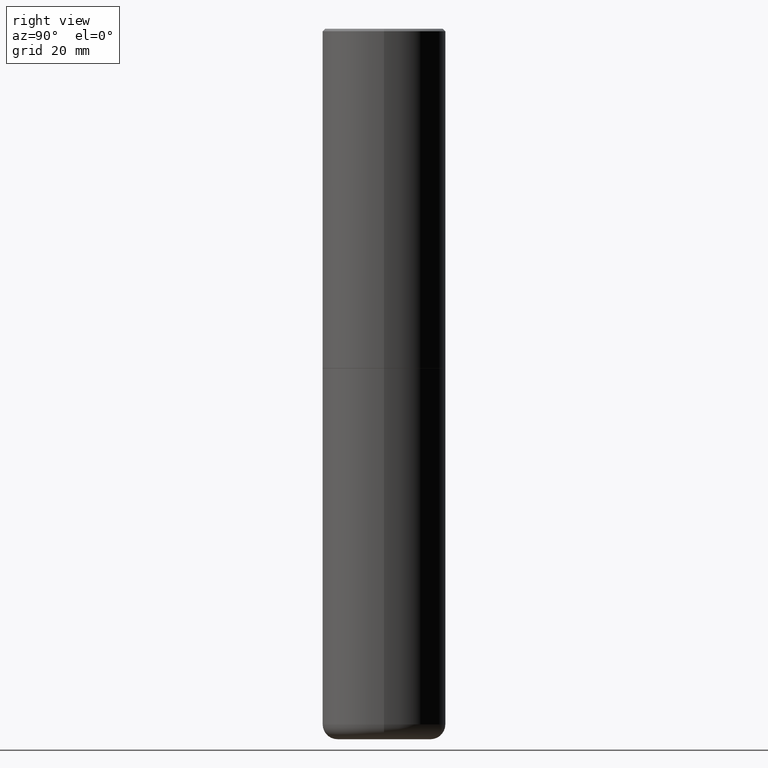
[diagram: clean part render]
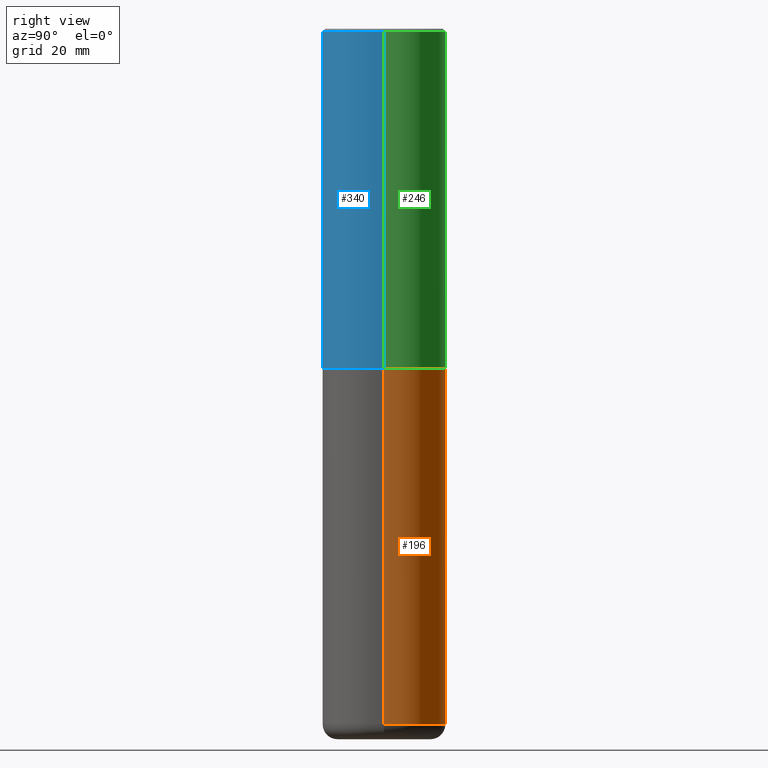
[diagram: same view with three faces highlighted in distinct colors, each labeled with its STEP entity id]
A machine part, right view with three faces highlighted in distinct colors.
Their STEP definitions:

[orange] entity #196 — the highlighted cylindrical surface (partial cylindrical patch) has radius 12.7 mm, axis along (-0, 0, 1).
#11 = VECTOR ( 'NONE', #122, 39.37007874015748143 ) ;
#14 = EDGE_CURVE ( 'NONE', #17, #47, #350, .T. ) ;
#17 = VERTEX_POINT ( 'NONE', #282 ) ;
#26 = VERTEX_POINT ( 'NONE', #417 ) ;
#31 = DIRECTION ( 'NONE',  ( 1.000000000000000000, -6.982962677686263555E-15, 0.000000000000000000 ) ) ;
#37 = CIRCLE ( 'NONE', #150, 0.4999999999999999445 ) ;
#47 = VERTEX_POINT ( 'NONE', #418 ) ;
#63 = ORIENTED_EDGE ( 'NONE', *, *, #141, .T. ) ;
#65 = VECTOR ( 'NONE', #148, 39.37007874015748143 ) ;
#80 = DIRECTION ( 'NONE',  ( -2.445468806185136597E-29, 3.491481338843145583E-15, 1.000000000000000000 ) ) ;
#99 = CIRCLE ( 'NONE', #294, 0.5000000000000000000 ) ;
#122 = DIRECTION ( 'NONE',  ( -2.445468806185136877E-29, 3.491481338843145188E-15, 1.000000000000000000 ) ) ;
#123 = CARTESIAN_POINT ( 'NONE',  ( -0.5000000000000000000, 3.552713678800500929E-15, -2.459467545127452891E-29 ) ) ;
#141 = EDGE_CURVE ( 'NONE', #17, #393, #37, .T. ) ;
#148 = DIRECTION ( 'NONE',  ( -2.445468806185136877E-29, 3.491481338843145188E-15, 1.000000000000000000 ) ) ;
#150 = AXIS2_PLACEMENT_3D ( 'NONE', #319, #156, #31 ) ;
#156 = DIRECTION ( 'NONE',  ( -2.445468806185136597E-29, 3.491481338843145583E-15, 1.000000000000000000 ) ) ;
#161 = LINE ( 'NONE', #123, #11 ) ;
#169 = DIRECTION ( 'NONE',  ( 1.000000000000000000, -6.982962677686266711E-15, 4.876176775795935793E-29 ) ) ;
#196 = ADVANCED_FACE ( 'NONE', ( #291 ), #271, .T. ) ;
#201 = DIRECTION ( 'NONE',  ( -2.445468806185136597E-29, 3.491481338843145583E-15, 1.000000000000000000 ) ) ;
#216 = EDGE_CURVE ( 'NONE', #393, #26, #161, .T. ) ;
#233 = CARTESIAN_POINT ( 'NONE',  ( -0.4999999999999998335, -1.610432625888640549E-14, -5.629999999999999893 ) ) ;
#247 = ORIENTED_EDGE ( 'NONE', *, *, #216, .T. ) ;
#260 = CARTESIAN_POINT ( 'NONE',  ( 0.000000000000000000, 0.000000000000000000, 0.000000000000000000 ) ) ;
#271 = CYLINDRICAL_SURFACE ( 'NONE', #275, 0.5000000000000000000 ) ;
#275 = AXIS2_PLACEMENT_3D ( 'NONE', #260, #201, #169 ) ;
#282 = CARTESIAN_POINT ( 'NONE',  ( 0.4999999999999998335, -2.314852127653003978E-14, -5.629999999999999893 ) ) ;
#291 = FACE_OUTER_BOUND ( 'NONE', #387, .T. ) ;
#294 = AXIS2_PLACEMENT_3D ( 'NONE', #376, #80, #339 ) ;
#319 = CARTESIAN_POINT ( 'NONE',  ( 1.376798937882231913E-28, -1.965703993768690642E-14, -5.629999999999999893 ) ) ;
#321 = CARTESIAN_POINT ( 'NONE',  ( 0.5000000000000000000, -3.491481338843133355E-15, 2.438088387897967896E-29 ) ) ;
#339 = DIRECTION ( 'NONE',  ( 1.000000000000000000, -6.982962677686266711E-15, 0.000000000000000000 ) ) ;
#346 = ORIENTED_EDGE ( 'NONE', *, *, #14, .F. ) ;
#350 = LINE ( 'NONE', #321, #65 ) ;
#357 = EDGE_CURVE ( 'NONE', #47, #26, #99, .T. ) ;
#376 = CARTESIAN_POINT ( 'NONE',  ( 6.725039217009123399E-29, -9.601573681818648281E-15, -2.749999999999999556 ) ) ;
#387 = EDGE_LOOP ( 'NONE', ( #63, #247, #395, #346 ) ) ;
#393 = VERTEX_POINT ( 'NONE', #233 ) ;
#395 = ORIENTED_EDGE ( 'NONE', *, *, #357, .F. ) ;
#417 = CARTESIAN_POINT ( 'NONE',  ( -0.5000000000000000000, -1.107659313095227642E-14, -2.749999999999999556 ) ) ;
#418 = CARTESIAN_POINT ( 'NONE',  ( 0.5000000000000000000, -1.309305502066178164E-14, -2.749999999999999556 ) ) ;

[blue] entity #340 — the highlighted cylindrical surface (partial cylindrical patch) has radius 12.7 mm, axis along (-0, 0, 1).
#1 = DIRECTION ( 'NONE',  ( 1.000000000000000000, -6.982962677686265922E-15, 0.000000000000000000 ) ) ;
#12 = CARTESIAN_POINT ( 'NONE',  ( -0.5000000000000003331, -1.281242234827830793E-15, -2.748999999999999666 ) ) ;
#30 = VECTOR ( 'NONE', #344, 39.37007874015748143 ) ;
#49 = DIRECTION ( 'NONE',  ( 1.000000000000000000, -6.982962677686266711E-15, 4.876176775795935793E-29 ) ) ;
#96 = EDGE_CURVE ( 'NONE', #134, #279, #289, .T. ) ;
#100 = EDGE_CURVE ( 'NONE', #411, #222, #409, .T. ) ;
#106 = ORIENTED_EDGE ( 'NONE', *, *, #96, .F. ) ;
#108 = EDGE_LOOP ( 'NONE', ( #383, #219, #152, #106 ) ) ;
#111 = AXIS2_PLACEMENT_3D ( 'NONE', #351, #386, #316 ) ;
#130 = DIRECTION ( 'NONE',  ( -2.445468806185136877E-29, 3.491481338843145188E-15, 1.000000000000000000 ) ) ;
#134 = VERTEX_POINT ( 'NONE', #318 ) ;
#138 = DIRECTION ( 'NONE',  ( -2.445468806185136597E-29, 3.491481338843145583E-15, 1.000000000000000000 ) ) ;
#149 = AXIS2_PLACEMENT_3D ( 'NONE', #243, #138, #49 ) ;
#152 = ORIENTED_EDGE ( 'NONE', *, *, #314, .T. ) ;
#219 = ORIENTED_EDGE ( 'NONE', *, *, #100, .T. ) ;
#221 = EDGE_CURVE ( 'NONE', #411, #134, #261, .T. ) ;
#222 = VERTEX_POINT ( 'NONE', #396 ) ;
#225 = CARTESIAN_POINT ( 'NONE',  ( 4.890937612370299433E-31, -6.982962677686328587E-17, -0.02000000000000010797 ) ) ;
#239 = LINE ( 'NONE', #312, #30 ) ;
#243 = CARTESIAN_POINT ( 'NONE',  ( 0.000000000000000000, 0.000000000000000000, 0.000000000000000000 ) ) ;
#256 = DIRECTION ( 'NONE',  ( -2.445468806185136597E-29, 3.491481338843145583E-15, 1.000000000000000000 ) ) ;
#261 = LINE ( 'NONE', #361, #379 ) ;
#274 = FACE_OUTER_BOUND ( 'NONE', #108, .T. ) ;
#279 = VERTEX_POINT ( 'NONE', #363 ) ;
#289 = CIRCLE ( 'NONE', #296, 0.5000000000000001110 ) ;
#296 = AXIS2_PLACEMENT_3D ( 'NONE', #225, #256, #1 ) ;
#312 = CARTESIAN_POINT ( 'NONE',  ( 0.5000000000000002220, -3.491481338843134933E-15, 2.438088387897969017E-29 ) ) ;
#314 = EDGE_CURVE ( 'NONE', #222, #279, #239, .T. ) ;
#316 = DIRECTION ( 'NONE',  ( 1.000000000000000000, -6.982962677686265922E-15, 0.000000000000000000 ) ) ;
#318 = CARTESIAN_POINT ( 'NONE',  ( -0.5000000000000001110, 3.421651712066270452E-15, -0.02000000000000010797 ) ) ;
#335 = CYLINDRICAL_SURFACE ( 'NONE', #149, 0.5000000000000002220 ) ;
#340 = ADVANCED_FACE ( 'NONE', ( #274 ), #335, .T. ) ;
#344 = DIRECTION ( 'NONE',  ( -2.445468806185136877E-29, 3.491481338843145188E-15, 1.000000000000000000 ) ) ;
#351 = CARTESIAN_POINT ( 'NONE',  ( 6.722593748202938917E-29, -9.598082200479805274E-15, -2.748999999999999666 ) ) ;
#361 = CARTESIAN_POINT ( 'NONE',  ( -0.5000000000000002220, 3.552713678800502507E-15, -2.459467545127454012E-29 ) ) ;
#363 = CARTESIAN_POINT ( 'NONE',  ( 0.5000000000000001110, -3.500078625662629868E-15, -0.02000000000000010797 ) ) ;
#379 = VECTOR ( 'NONE', #130, 39.37007874015748143 ) ;
#383 = ORIENTED_EDGE ( 'NONE', *, *, #221, .F. ) ;
#386 = DIRECTION ( 'NONE',  ( -2.445468806185136597E-29, 3.491481338843145583E-15, 1.000000000000000000 ) ) ;
#396 = CARTESIAN_POINT ( 'NONE',  ( 0.5000000000000003331, -1.308956353932294179E-14, -2.748999999999999666 ) ) ;
#409 = CIRCLE ( 'NONE', #111, 0.5000000000000003331 ) ;
#411 = VERTEX_POINT ( 'NONE', #12 ) ;

[green] entity #246 — the highlighted cylindrical surface (partial cylindrical patch) has radius 12.7 mm, axis along (-0, 0, 1).
#12 = CARTESIAN_POINT ( 'NONE',  ( -0.5000000000000003331, -1.281242234827830793E-15, -2.748999999999999666 ) ) ;
#15 = ORIENTED_EDGE ( 'NONE', *, *, #221, .T. ) ;
#27 = AXIS2_PLACEMENT_3D ( 'NONE', #41, #164, #159 ) ;
#30 = VECTOR ( 'NONE', #344, 39.37007874015748143 ) ;
#36 = EDGE_LOOP ( 'NONE', ( #347, #15, #214, #368 ) ) ;
#41 = CARTESIAN_POINT ( 'NONE',  ( 6.722593748202938917E-29, -9.598082200479805274E-15, -2.748999999999999666 ) ) ;
#50 = CIRCLE ( 'NONE', #51, 0.5000000000000001110 ) ;
#51 = AXIS2_PLACEMENT_3D ( 'NONE', #167, #70, #293 ) ;
#70 = DIRECTION ( 'NONE',  ( -2.445468806185136597E-29, 3.491481338843145583E-15, 1.000000000000000000 ) ) ;
#71 = CIRCLE ( 'NONE', #27, 0.5000000000000003331 ) ;
#104 = DIRECTION ( 'NONE',  ( -2.445468806185136597E-29, 3.491481338843145583E-15, 1.000000000000000000 ) ) ;
#130 = DIRECTION ( 'NONE',  ( -2.445468806185136877E-29, 3.491481338843145188E-15, 1.000000000000000000 ) ) ;
#134 = VERTEX_POINT ( 'NONE', #318 ) ;
#159 = DIRECTION ( 'NONE',  ( 1.000000000000000000, -6.982962677686265922E-15, 0.000000000000000000 ) ) ;
#164 = DIRECTION ( 'NONE',  ( -2.445468806185136597E-29, 3.491481338843145583E-15, 1.000000000000000000 ) ) ;
#167 = CARTESIAN_POINT ( 'NONE',  ( 4.890937612370299433E-31, -6.982962677686328587E-17, -0.02000000000000010797 ) ) ;
#198 = CYLINDRICAL_SURFACE ( 'NONE', #317, 0.5000000000000002220 ) ;
#214 = ORIENTED_EDGE ( 'NONE', *, *, #232, .F. ) ;
#221 = EDGE_CURVE ( 'NONE', #411, #134, #261, .T. ) ;
#222 = VERTEX_POINT ( 'NONE', #396 ) ;
#228 = CARTESIAN_POINT ( 'NONE',  ( 0.000000000000000000, 0.000000000000000000, 0.000000000000000000 ) ) ;
#232 = EDGE_CURVE ( 'NONE', #279, #134, #50, .T. ) ;
#239 = LINE ( 'NONE', #312, #30 ) ;
#246 = ADVANCED_FACE ( 'NONE', ( #298 ), #198, .T. ) ;
#261 = LINE ( 'NONE', #361, #379 ) ;
#266 = DIRECTION ( 'NONE',  ( 1.000000000000000000, -6.982962677686266711E-15, 4.876176775795935793E-29 ) ) ;
#279 = VERTEX_POINT ( 'NONE', #363 ) ;
#293 = DIRECTION ( 'NONE',  ( 1.000000000000000000, -6.982962677686265922E-15, 0.000000000000000000 ) ) ;
#298 = FACE_OUTER_BOUND ( 'NONE', #36, .T. ) ;
#312 = CARTESIAN_POINT ( 'NONE',  ( 0.5000000000000002220, -3.491481338843134933E-15, 2.438088387897969017E-29 ) ) ;
#314 = EDGE_CURVE ( 'NONE', #222, #279, #239, .T. ) ;
#317 = AXIS2_PLACEMENT_3D ( 'NONE', #228, #104, #266 ) ;
#318 = CARTESIAN_POINT ( 'NONE',  ( -0.5000000000000001110, 3.421651712066270452E-15, -0.02000000000000010797 ) ) ;
#344 = DIRECTION ( 'NONE',  ( -2.445468806185136877E-29, 3.491481338843145188E-15, 1.000000000000000000 ) ) ;
#347 = ORIENTED_EDGE ( 'NONE', *, *, #385, .T. ) ;
#361 = CARTESIAN_POINT ( 'NONE',  ( -0.5000000000000002220, 3.552713678800502507E-15, -2.459467545127454012E-29 ) ) ;
#363 = CARTESIAN_POINT ( 'NONE',  ( 0.5000000000000001110, -3.500078625662629868E-15, -0.02000000000000010797 ) ) ;
#368 = ORIENTED_EDGE ( 'NONE', *, *, #314, .F. ) ;
#379 = VECTOR ( 'NONE', #130, 39.37007874015748143 ) ;
#385 = EDGE_CURVE ( 'NONE', #222, #411, #71, .T. ) ;
#396 = CARTESIAN_POINT ( 'NONE',  ( 0.5000000000000003331, -1.308956353932294179E-14, -2.748999999999999666 ) ) ;
#411 = VERTEX_POINT ( 'NONE', #12 ) ;